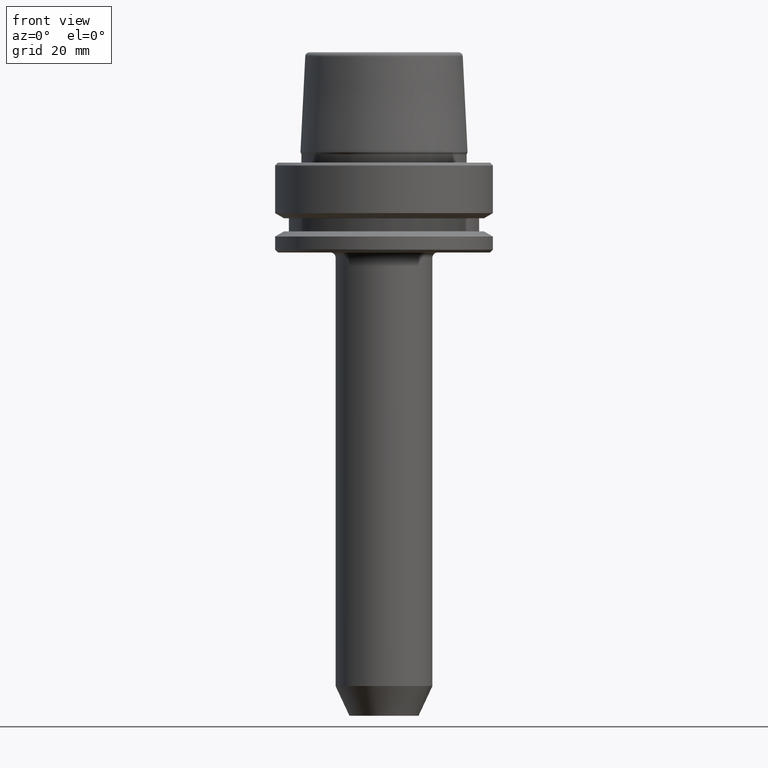
[diagram: clean part render]
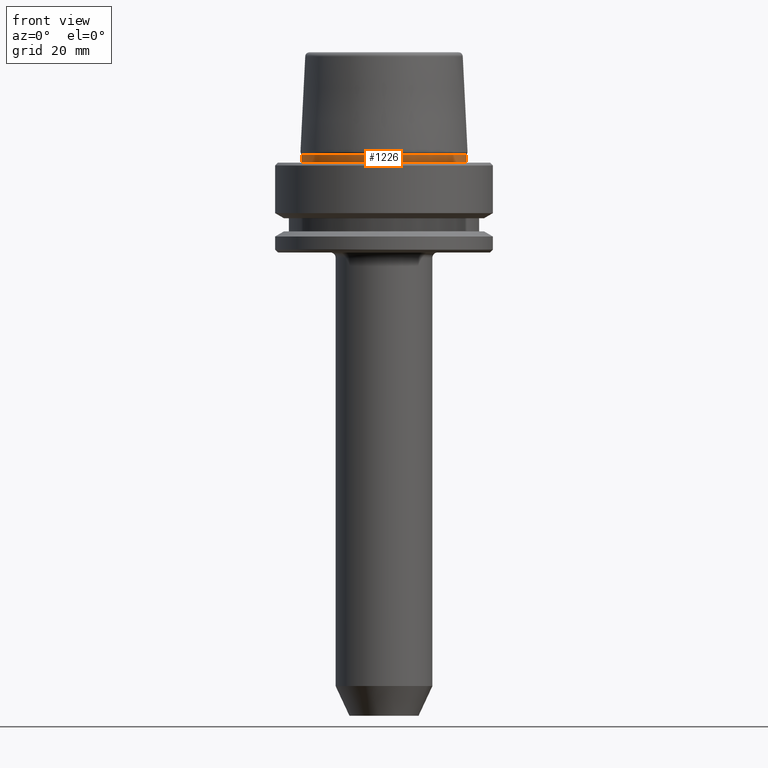
[diagram: same view with one face highlighted and labeled with its STEP entity id]
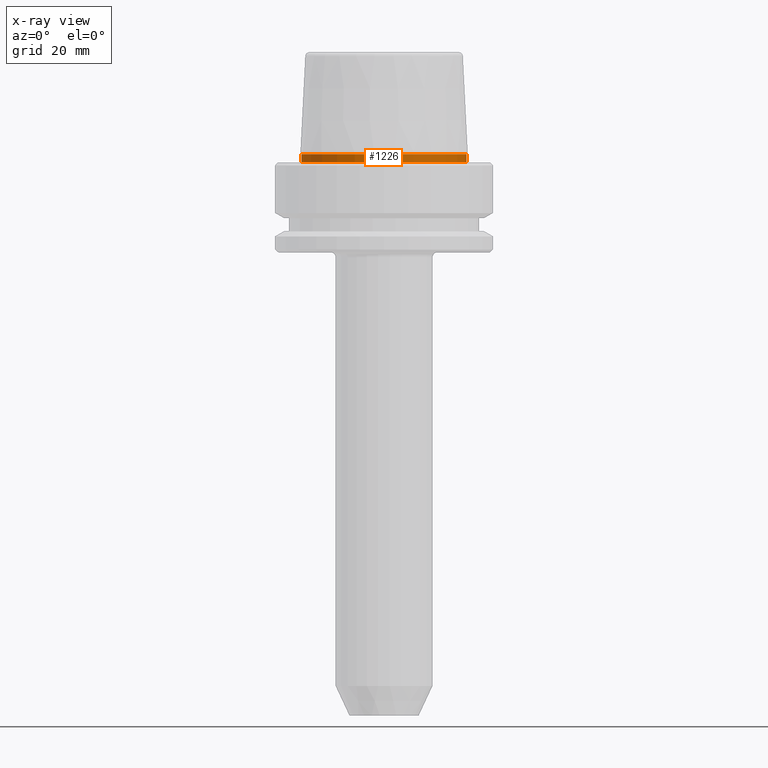
[diagram: x-ray of the same camera — body ghosted, the highlighted face saturated]
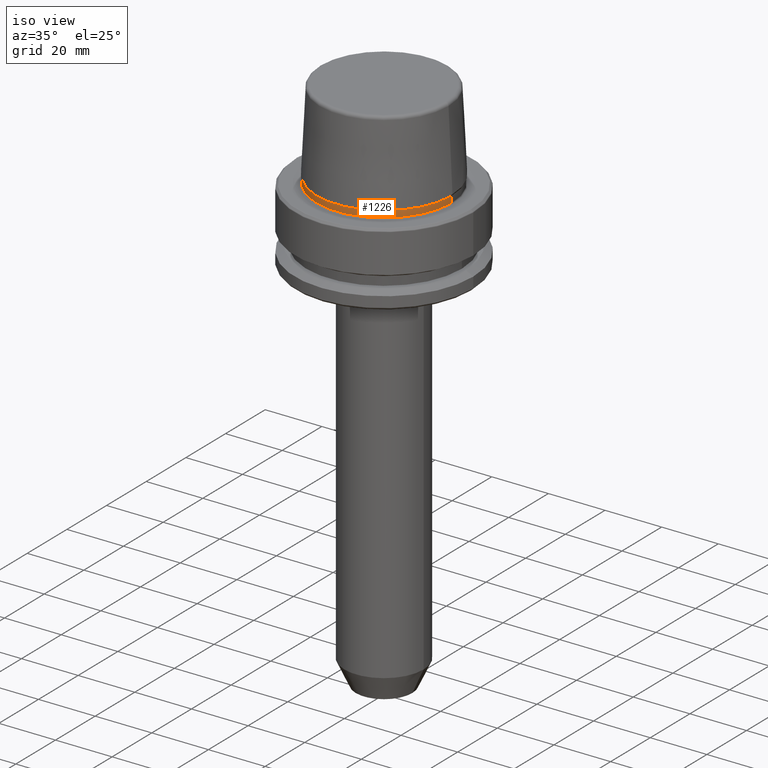
[diagram: same view with one face highlighted and labeled with its STEP entity id]
A machine part, front view. The second image highlights one B-rep face of the part: STEP entity #1226.
The next image is the same camera in x-ray: the body ghosted, the highlighted face saturated — about 0% of this face is hidden behind the body in this view.
A second angle (iso view) of the same face is appended — the face is thin or edge-on in the first view.
In plain terms, the highlighted cylindrical surface (partial cylindrical patch) has radius 23.89 mm, axis along (-0, -0, 1).
Its self-contained STEP definition (entity closure, byte-faithful):
#21 = VECTOR ( 'NONE', #1110, 1000.000000000000000 ) ;
#56 = CARTESIAN_POINT ( 'NONE',  ( -23.89000000000000100, 2.925681203163027000E-015, 78.96908074195309300 ) ) ;
#81 = DIRECTION ( 'NONE',  ( 1.000000000000000000, 0.0000000000000000000, 0.0000000000000000000 ) ) ;
#184 = VERTEX_POINT ( 'NONE', #487 ) ;
#198 = CARTESIAN_POINT ( 'NONE',  ( -23.89000000000000400, 2.961613815265650600E-015, 0.1312552021302954000 ) ) ;
#208 = VERTEX_POINT ( 'NONE', #198 ) ;
#222 = DIRECTION ( 'NONE',  ( -0.0000000000000000000, -0.0000000000000000000, 1.000000000000000000 ) ) ;
#318 = LINE ( 'NONE', #56, #21 ) ;
#323 = CARTESIAN_POINT ( 'NONE',  ( 0.0000000000000000000, 0.0000000000000000000, 0.1312552021302954000 ) ) ;
#359 = VERTEX_POINT ( 'NONE', #602 ) ;
#417 = EDGE_CURVE ( 'NONE', #359, #184, #552, .T. ) ;
#444 = CARTESIAN_POINT ( 'NONE',  ( 0.0000000000000000000, 0.0000000000000000000, 2.398838415132276100 ) ) ;
#475 = DIRECTION ( 'NONE',  ( -0.0000000000000000000, -0.0000000000000000000, 1.000000000000000000 ) ) ;
#487 = CARTESIAN_POINT ( 'NONE',  ( 23.89000000000000100, 0.0000000000000000000, 2.398838415132276100 ) ) ;
#544 = EDGE_CURVE ( 'NONE', #208, #1003, #318, .T. ) ;
#552 = LINE ( 'NONE', #783, #630 ) ;
#560 = EDGE_CURVE ( 'NONE', #208, #359, #722, .T. ) ;
#602 = CARTESIAN_POINT ( 'NONE',  ( 23.89000000000000400, 0.0000000000000000000, 0.1312552021302954000 ) ) ;
#605 = CARTESIAN_POINT ( 'NONE',  ( -23.89000000000000100, 2.942846235451747500E-015, 2.398838415132276100 ) ) ;
#609 = DIRECTION ( 'NONE',  ( -0.0000000000000000000, -0.0000000000000000000, 1.000000000000000000 ) ) ;
#617 = EDGE_LOOP ( 'NONE', ( #1241, #1190, #1143, #960 ) ) ;
#630 = VECTOR ( 'NONE', #475, 1000.000000000000000 ) ;
#711 = EDGE_CURVE ( 'NONE', #1003, #184, #879, .T. ) ;
#722 = CIRCLE ( 'NONE', #758, 23.89000000000000400 ) ;
#723 = CYLINDRICAL_SURFACE ( 'NONE', #1150, 23.89000000000000100 ) ;
#757 = DIRECTION ( 'NONE',  ( 1.000000000000000000, 0.0000000000000000000, 0.0000000000000000000 ) ) ;
#758 = AXIS2_PLACEMENT_3D ( 'NONE', #323, #222, #757 ) ;
#783 = CARTESIAN_POINT ( 'NONE',  ( 23.89000000000000100, 0.0000000000000000000, 78.96908074195309300 ) ) ;
#822 = DIRECTION ( 'NONE',  ( 1.000000000000000000, 0.0000000000000000000, 0.0000000000000000000 ) ) ;
#879 = CIRCLE ( 'NONE', #1221, 23.89000000000000100 ) ;
#960 = ORIENTED_EDGE ( 'NONE', *, *, #711, .F. ) ;
#1003 = VERTEX_POINT ( 'NONE', #605 ) ;
#1049 = DIRECTION ( 'NONE',  ( -0.0000000000000000000, -0.0000000000000000000, 1.000000000000000000 ) ) ;
#1110 = DIRECTION ( 'NONE',  ( -0.0000000000000000000, -0.0000000000000000000, 1.000000000000000000 ) ) ;
#1116 = CARTESIAN_POINT ( 'NONE',  ( 0.0000000000000000000, 0.0000000000000000000, 78.96908074195309300 ) ) ;
#1141 = FACE_OUTER_BOUND ( 'NONE', #617, .T. ) ;
#1143 = ORIENTED_EDGE ( 'NONE', *, *, #417, .T. ) ;
#1150 = AXIS2_PLACEMENT_3D ( 'NONE', #1116, #1049, #822 ) ;
#1190 = ORIENTED_EDGE ( 'NONE', *, *, #560, .T. ) ;
#1221 = AXIS2_PLACEMENT_3D ( 'NONE', #444, #609, #81 ) ;
#1226 = ADVANCED_FACE ( 'NONE', ( #1141 ), #723, .T. ) ;
#1241 = ORIENTED_EDGE ( 'NONE', *, *, #544, .F. ) ;